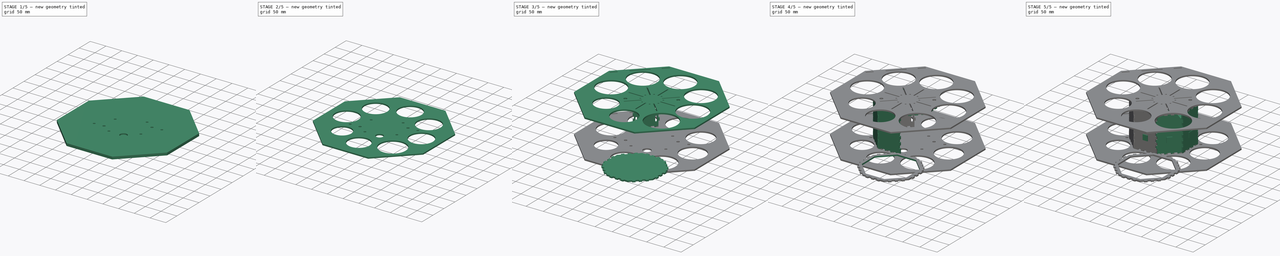
[diagram: build sequence overview — one tinted view per stage of 5, left to right]
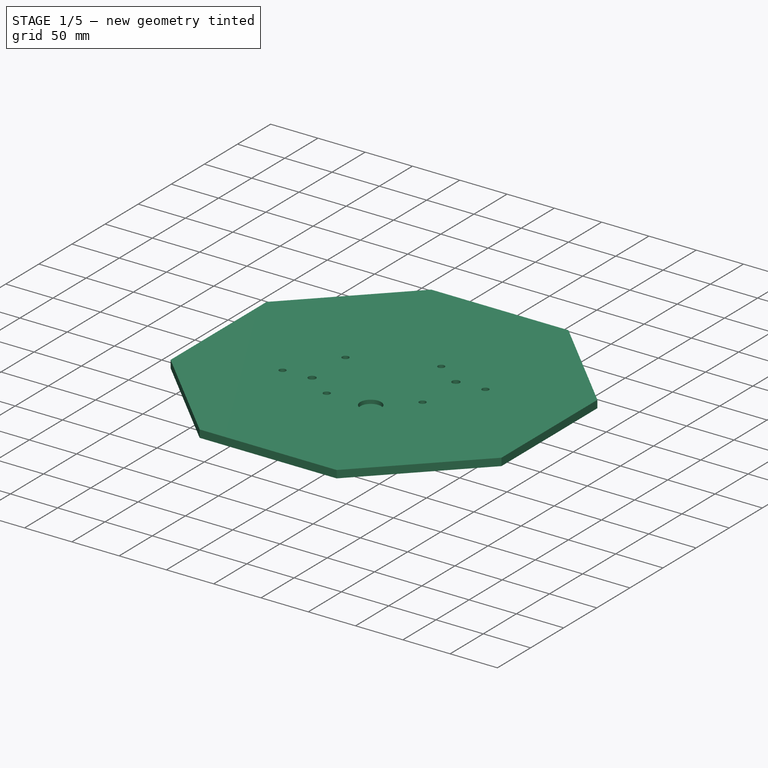
[diagram: stage 1 of 5 — iso view after this stage's code; geometry added in this stage tinted green]
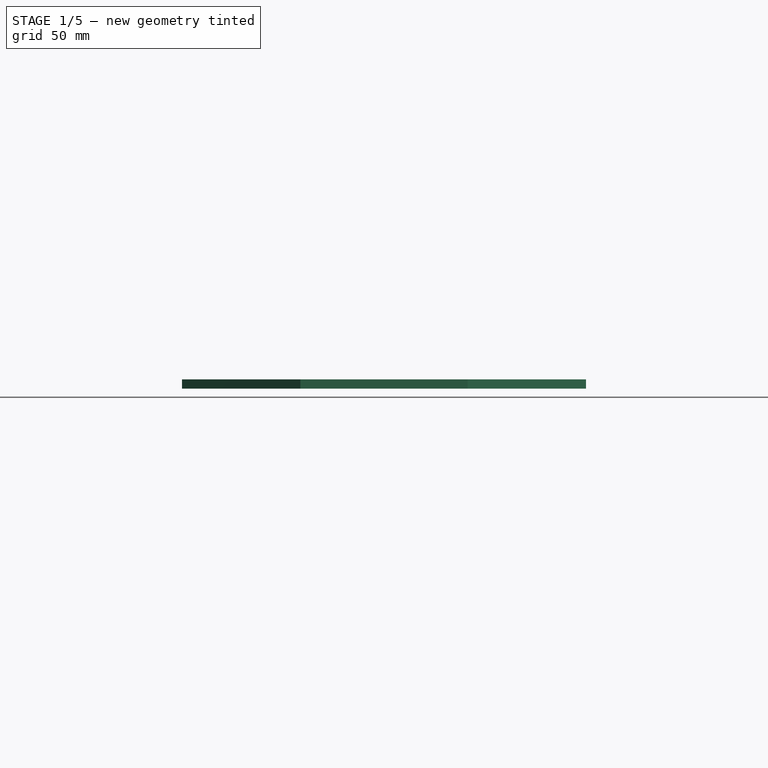
[diagram: stage 1 of 5 — front view after this stage's code; geometry added in this stage tinted green]
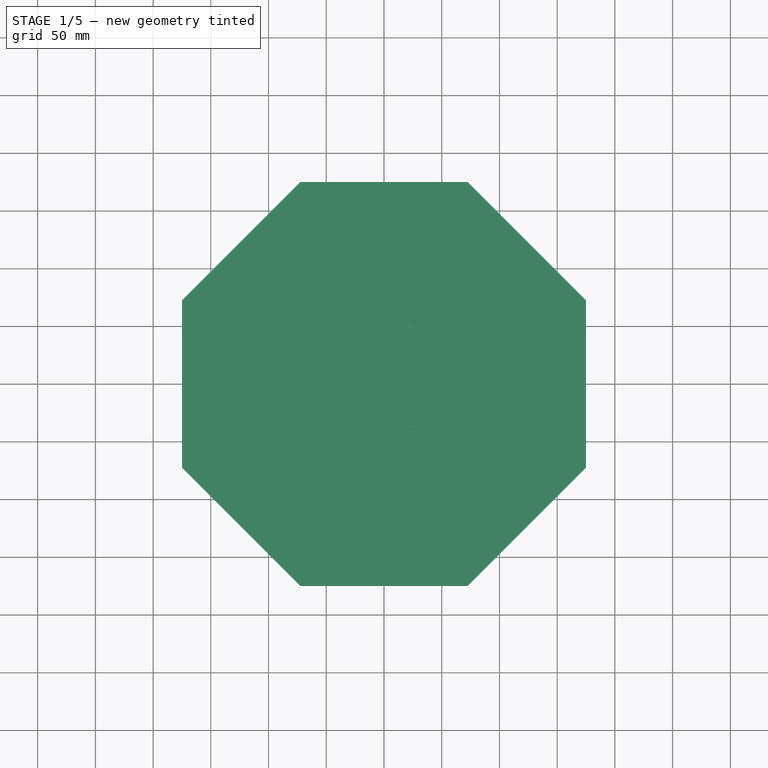
[diagram: stage 1 of 5 — top view after this stage's code; geometry added in this stage tinted green]
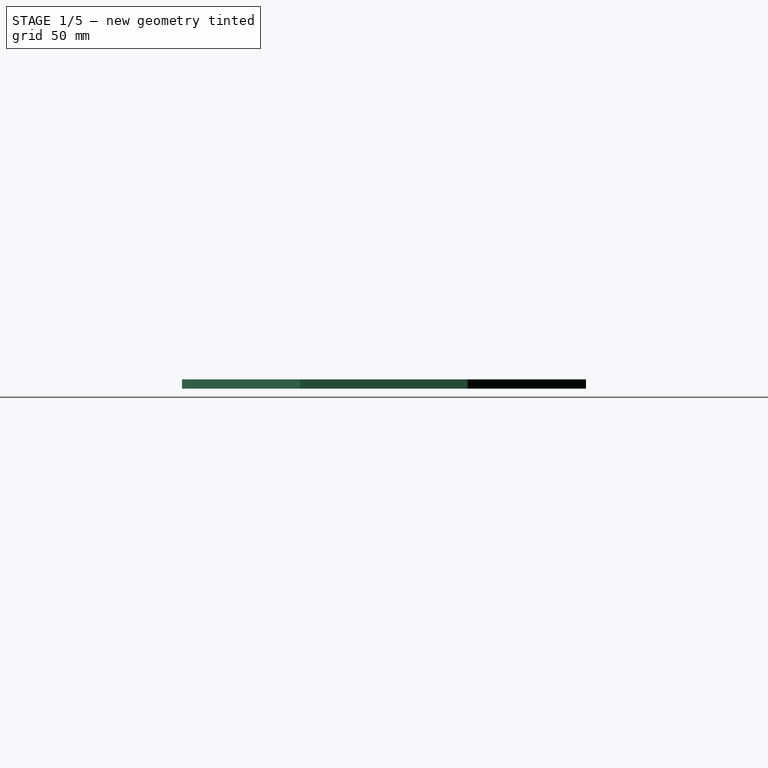
[diagram: stage 1 of 5 — right view after this stage's code; geometry added in this stage tinted green]
FCSTD DOCUMENT  (FreeCAD 0.20R29603 (Git))
Label: Bottles_V3
License: All rights reserved
LicenseURL: http://en.wikipedia.org/wiki/All_rights_reserved
objects: Sketcher::SketchObject×13, Part::Feature×11, Part::Extrusion×10, PartDesign::Body×9, PartDesign::Pocket×8, PartDesign::Pad×5, App::DocumentObjectGroup×5, Part::FeaturePython×5, PartDesign::FeatureBase×4, PartDesign::PolarPattern×2, PartDesign::SubShapeBinder×1, PartDesign::ShapeBinder×1
note: 82 computed .brp shape members not serialized (recipe doc carries the construction recipe); baked Part::Feature solids carry a one-line shape summary decoded from their .brp

FEATURE [PartDesign::Body] Body001  label="Relais board"
  Group = -> [Sketch001,Pad001]
  Origin = -> Origin001
  Placement = pos=(3,0,-20.5) rot=(0,0,-1;1.5708rad)
  Tip = -> Pad001
FEATURE [Sketcher::SketchObject] Sketch002
  FullyConstrained = true
  MapMode = 5
  Support = -> [XY_Plane002]
  sketch-geometry (9):
    g0: LineSegment StartX=174.922 StartY=72.4551 StartZ=0 EndX=72.4551 EndY=174.922 EndZ=0
    g1: LineSegment StartX=72.4551 StartY=174.922 StartZ=0 EndX=-72.4551 EndY=174.922 EndZ=0
    g2: LineSegment StartX=-72.4551 StartY=174.922 StartZ=0 EndX=-174.922 EndY=72.4551 EndZ=0
    g3: LineSegment StartX=-174.922 StartY=-72.4551 StartZ=0 EndX=-72.4551 EndY=-174.922 EndZ=0
    g4: LineSegment StartX=-72.4551 StartY=-174.922 StartZ=0 EndX=72.4551 EndY=-174.922 EndZ=0
    g5: LineSegment StartX=72.4551 StartY=-174.922 StartZ=0 EndX=174.922 EndY=-72.4551 EndZ=0
    g6: LineSegment StartX=174.922 StartY=-72.4551 StartZ=0 EndX=174.922 EndY=72.4551 EndZ=0
    g7: Circle CenterX=0 CenterY=0 CenterZ=0 NormalX=0 NormalY=0 NormalZ=1 AngleXU=0 Radius=189.334
    g8: LineSegment StartX=-174.922 StartY=72.4551 StartZ=0 EndX=-174.922 EndY=-72.4551 EndZ=0
  constraints (20):
    c: Coincident(g0,g1)
    c: Coincident(g1,g2)
    c: Coincident(g8,g3)
    c: Coincident(g3,g4)
    c: Coincident(g4,g5)
    c: Coincident(g5,g6)
    c: Coincident(g6,g0)
    c: Equal(g0, g1-g6) x6
    c: PointOnObject(g0,g7)
    c: PointOnObject(g1,g7)
    c: PointOnObject(g2,g7)
    c: PointOnObject(g8,g7)
    c: PointOnObject(g3,g7)
    c: PointOnObject(g4,g7)
    c: PointOnObject(g5,g7)
    c: PointOnObject(g6,g7)
    c: Coincident(g7,g-1)
    c: Horizontal(g1)
    c: Block(g6)
    c: Coincident(g2,g8)
FEATURE [PartDesign::Pad] Pad002
  Direction = (0,0,1)
  Length = 4
  Length2 = 10
  Profile = -> Sketch002
  ReferenceAxis = -> Sketch002 [N_Axis]
  Type = 0
FEATURE [Sketcher::SketchObject] Sketch003
  FullyConstrained = false
  MapMode = 5
  Support = -> [XY_Plane003]
  sketch-geometry (8):
    g0: Circle CenterX=-118.01 CenterY=0 CenterZ=0 NormalX=0 NormalY=0 NormalZ=1 AngleXU=0 Radius=36.5
    g1: Circle CenterX=-84.3757 CenterY=83.0682 CenterZ=0 NormalX=0 NormalY=0 NormalZ=1 AngleXU=0 Radius=36
    g2: Circle CenterX=0 CenterY=118.321 CenterZ=0 NormalX=0 NormalY=0 NormalZ=1 AngleXU=0 Radius=36
    g3: Circle CenterX=85.0257 CenterY=82.1935 CenterZ=0 NormalX=0 NormalY=0 NormalZ=1 AngleXU=0 Radius=36.5
    g4: Circle CenterX=118.875 CenterY=0 CenterZ=0 NormalX=0 NormalY=0 NormalZ=1 AngleXU=0 Radius=36
    g5: Circle CenterX=88.015 CenterY=-86.0905 CenterZ=0 NormalX=0 NormalY=0 NormalZ=1 AngleXU=0 Radius=40.5
    g6: Circle CenterX=0 CenterY=-113.908 CenterZ=0 NormalX=0 NormalY=0 NormalZ=1 AngleXU=0 Radius=33.5
    g7: Circle CenterX=-76.7156 CenterY=-80.0055 CenterZ=0 NormalX=0 NormalY=0 NormalZ=1 AngleXU=0 Radius=29
  constraints (11):
    c: Diameter(g0) = 73
    c: PointOnObject(g2,g-2)
    c: PointOnObject(g4,g-1)
    c: PointOnObject(g6,g-2)
    c: Diameter(g1) = 72
    c: Diameter(g2) = 72
    c: Diameter(g3) = 73
    c: Diameter(g4) = 72
    c: Diameter(g5) = 81
    c: Diameter(g6) = 67
    c: Diameter(g7) = 58
FEATURE [Sketcher::SketchObject] Sketch004
  FullyConstrained = false
  MapMode = 5
  Support = -> [XY_Plane004]
  sketch-geometry (9):
    g0: LineSegment StartX=174.922 StartY=72.4551 StartZ=0 EndX=72.4551 EndY=174.922 EndZ=0
    g1: LineSegment StartX=72.4551 StartY=174.922 StartZ=0 EndX=-72.4551 EndY=174.922 EndZ=0
    g2: LineSegment StartX=-72.4551 StartY=174.922 StartZ=0 EndX=-174.922 EndY=72.4551 EndZ=0
    g3: LineSegment StartX=-174.922 StartY=72.4551 StartZ=0 EndX=-174.922 EndY=-72.4551 EndZ=0
    g4: LineSegment StartX=-174.922 StartY=-72.4551 StartZ=0 EndX=-72.4551 EndY=-174.922 EndZ=0
    g5: LineSegment StartX=-72.4551 StartY=-174.922 StartZ=0 EndX=72.4551 EndY=-174.922 EndZ=0
    g6: LineSegment StartX=72.4551 StartY=-174.922 StartZ=0 EndX=174.922 EndY=-72.4551 EndZ=0
    g7: LineSegment StartX=174.922 StartY=-72.4551 StartZ=0 EndX=174.922 EndY=72.4551 EndZ=0
    g8: Circle CenterX=0 CenterY=0 CenterZ=0 NormalX=0 NormalY=0 NormalZ=1 AngleXU=0 Radius=189.334
  constraints (19):
    c: Coincident(g0,g1)
    c: Coincident(g1,g2)
    c: Coincident(g2,g3)
    c: Coincident(g3,g4)
    c: Coincident(g4,g5)
    c: Coincident(g5,g6)
    c: Coincident(g6,g7)
    c: Coincident(g7,g0)
    c: Equal(g0, g1-g7) x7
    c: PointOnObject(g0,g8)
    c: PointOnObject(g1,g8)
    c: PointOnObject(g2,g8)
    c: PointOnObject(g3,g8)
    c: PointOnObject(g4,g8)
    c: PointOnObject(g5,g8)
    c: PointOnObject(g6,g8)
    c: PointOnObject(g7,g8)
    c: Coincident(g8,g-1)
    c: Horizontal(g1)
FEATURE [PartDesign::Pad] Pad003
  Direction = (0,0,1)
  Length = 4
  Length2 = 10
  Profile = -> Sketch004
  ReferenceAxis = -> Sketch004 [N_Axis]
  Type = 0
FEATURE [PartDesign::Body] Body004  label="Floor001ref"
  Group = -> [Sketch004,Pad003]
  Origin = -> Origin004
  Placement = pos=(0,0,-38.5) rot=(0,0,1;0rad)
  Tip = -> Pad003
FEATURE [PartDesign::FeatureBase] Clone001
  BaseFeature = -> Body004
  Placement = pos=(0,0,-4) rot=(0,0,1;0rad)
FEATURE [Sketcher::SketchObject] Sketch005
  FullyConstrained = false
  MapMode = 5
  Support = -> [XY_Plane005]
  sketch-geometry (8):
    g0: Circle CenterX=-118.01 CenterY=0 CenterZ=0 NormalX=0 NormalY=0 NormalZ=1 AngleXU=0 Radius=40.5
    g1: Circle CenterX=-84.3757 CenterY=83.0682 CenterZ=0 NormalX=0 NormalY=0 NormalZ=1 AngleXU=0 Radius=40.5
    g2: Circle CenterX=0 CenterY=118.321 CenterZ=0 NormalX=0 NormalY=0 NormalZ=1 AngleXU=0 Radius=40.5
    g3: Circle CenterX=85.0257 CenterY=82.1935 CenterZ=0 NormalX=0 NormalY=0 NormalZ=1 AngleXU=0 Radius=40.5
    g4: Circle CenterX=118.875 CenterY=0 CenterZ=0 NormalX=0 NormalY=0 NormalZ=1 AngleXU=0 Radius=41.5
    g5: Circle CenterX=88.015 CenterY=-86.0905 CenterZ=0 NormalX=0 NormalY=0 NormalZ=1 AngleXU=0 Radius=44.5
    g6: Circle CenterX=0 CenterY=-113.908 CenterZ=0 NormalX=0 NormalY=0 NormalZ=1 AngleXU=0 Radius=36
    g7: Circle CenterX=-76.7156 CenterY=-80.0055 CenterZ=0 NormalX=0 NormalY=0 NormalZ=1 AngleXU=0 Radius=32.5
  constraints (11):
    c: Diameter(g0) = 81
    c: PointOnObject(g2,g-2)
    c: PointOnObject(g4,g-1)
    c: PointOnObject(g6,g-2)
    c: Diameter(g1) = 81
    c: Diameter(g2) = 81
    c: Diameter(g3) = 81
    c: Diameter(g4) = 83
    c: Diameter(g5) = 89
    c: Diameter(g6) = 72
    c: Diameter(g7) = 65
FEATURE [PartDesign::Pocket] Pocket001
  BaseFeature = -> Clone001
  Direction = (0,0,-1)
  Length = 5
  Length2 = 5
  Placement = pos=(0,0,-4) rot=(0,0,1;0rad)
  Profile = -> Sketch005
  ReferenceAxis = -> Sketch005 [N_Axis]
  Type = 1
FEATURE [Sketcher::SketchObject] Sketch006
  FullyConstrained = true
  MapMode = 5
  Support = -> [Pocket001]
  sketch-geometry (5):
    g0: ArcOfCircle CenterX=0 CenterY=66 CenterZ=0 NormalX=0 NormalY=0 NormalZ=1 AngleXU=0 Radius=1.6 StartAngle=-6.57829e-11 EndAngle=3.14159
    g1: ArcOfCircle CenterX=0 CenterY=26 CenterZ=0 NormalX=0 NormalY=0 NormalZ=1 AngleXU=0 Radius=1.6 StartAngle=3.14159 EndAngle=6.28319
    g2: LineSegment StartX=-1.6 StartY=66 StartZ=0 EndX=-1.6 EndY=26 EndZ=0
    g3: LineSegment StartX=1.6 StartY=26 StartZ=0 EndX=1.6 EndY=66 EndZ=0
    g4: Circle CenterX=10 CenterY=26 CenterZ=0 NormalX=0 NormalY=0 NormalZ=1 AngleXU=0 Radius=2
  constraints (13):
    c: Tangent(g0,g2) = -1.5708
    c: Tangent(g2,g1) = -1.5708
    c: Tangent(g1,g3) = -1.5708
    c: Tangent(g3,g0) = -1.5708
    c: Equal(g0,g1)
    c: PointOnObject(g0,g-2)
    c: PointOnObject(g1,g-2)
    c: DistanceX(g0,g0) = 3.2
    c: DistanceY(g-1,g1) = 26
    c: DistanceY(g1,g0) = 40
    c: Horizontal(g4,g1)
    c: Diameter(g4) = 4
    c: DistanceX(g1,g4) = 10
FEATURE [PartDesign::Pocket] Pocket002
  BaseFeature = -> Pocket001
  Direction = (0,0,-1)
  Length = 5
  Length2 = 5
  Placement = pos=(0,0,-4) rot=(0,0,1;0rad)
  Profile = -> Sketch006
  ReferenceAxis = -> Sketch006 [N_Axis]
  Type = 1
FEATURE [PartDesign::PolarPattern] PolarPattern001
  Angle = 360
  Axis = -> Sketch006 [N_Axis]
  BaseFeature = -> Pocket002
  Occurrences = 8
  Originals = -> [Pocket002]
  Placement = pos=(0,0,-4) rot=(0,0,1;0rad)
FEATURE [PartDesign::Body] Body006  label="Bottom"
  BaseFeature = -> Extrude
  Group = -> [BaseFeature,Sketch008,Pocket004]
  Origin = -> Origin006
  Placement = pos=(-88,196,-26.5) rot=(0,0,1;0rad)
  Tip = -> Pocket004
FEATURE [App::DocumentObjectGroup] Group002  label="ActualBoxParts"
  Group = -> [Extrude001,Extrude002,Extrude003,Extrude004,Extrude005,Extrude006,Extrude007,Extrude008,Extrude009,Body006]
FEATURE [App::DocumentObjectGroup] Group001  label="Box"
  Group = -> [Path001,Path004,Path005,Path006,Path007,Path008,Path009,Path010,Path011,Connect,Extrude,Group002]
FEATURE [Sketcher::SketchObject] Sketch010
  AttachmentOffset = pos=(0,0,0) rot=(0,0,1;0.392699rad)
  FullyConstrained = false
  MapMode = 5
  Placement = pos=(0,0,4) rot=(0,0,1;0.392699rad)
  Support = -> [Pad002]
  sketch-geometry (16):
    g0: Circle CenterX=0 CenterY=-53 CenterZ=0 NormalX=0 NormalY=0 NormalZ=1 AngleXU=0 Radius=11
    g1: Circle CenterX=-42.5 CenterY=37.5 CenterZ=0 NormalX=0 NormalY=0 NormalZ=1 AngleXU=0 Radius=3.5
    g2: Circle CenterX=-42.5 CenterY=-37.5 CenterZ=0 NormalX=0 NormalY=0 NormalZ=1 AngleXU=0 Radius=3.5
    g3: Circle CenterX=42.5 CenterY=37.5 CenterZ=0 NormalX=0 NormalY=0 NormalZ=1 AngleXU=0 Radius=3.5
    g4: Circle CenterX=42.5 CenterY=-37.5 CenterZ=0 NormalX=0 NormalY=0 NormalZ=1 AngleXU=0 Radius=3.5
    g5: Circle CenterX=90 CenterY=0 CenterZ=0 NormalX=0 NormalY=0 NormalZ=1 AngleXU=0 Radius=3.5
    g6: Circle CenterX=-90 CenterY=0 CenterZ=0 NormalX=0 NormalY=0 NormalZ=1 AngleXU=0 Radius=3.5
    g7: LineSegment StartX=-90 StartY=0 StartZ=0 EndX=-42.5 EndY=37.5 EndZ=0
    g8: LineSegment StartX=42.5 StartY=37.5 StartZ=0 EndX=90 EndY=0 EndZ=0
    g9: LineSegment StartX=-42.5 StartY=37.5 StartZ=0 EndX=0 EndY=0 EndZ=0
    g10: LineSegment StartX=0 StartY=0 StartZ=0 EndX=-42.5 EndY=-37.5 EndZ=0
    g11: LineSegment StartX=42.5 StartY=37.5 StartZ=0 EndX=0 EndY=0 EndZ=0
    g12: Circle CenterX=-61.7663 CenterY=-9.30983 CenterZ=0 NormalX=0 NormalY=0 NormalZ=1 AngleXU=0 Radius=4
    g13: Circle CenterX=61.7663 CenterY=9.30983 CenterZ=0 NormalX=0 NormalY=0 NormalZ=1 AngleXU=0 Radius=4
    g14: LineSegment StartX=-61.7663 StartY=-9.30983 StartZ=0 EndX=0 EndY=0 EndZ=0
    g15: LineSegment StartX=0 StartY=0 StartZ=0 EndX=61.7663 EndY=9.30983 EndZ=0
  constraints (39):
    c: PointOnObject(g0,g-2)
    c: Diameter(g0) = 22
    c: DistanceY(g0,g-1) = 53
    c: Diameter(g1) = 7
    c: Equal(g2,g1)
    c: PointOnObject(g5,g-1)
    c: PointOnObject(g6,g-1)
    c: Equal(g6,g2)
    c: Equal(g2,g4)
    c: Equal(g4,g5)
    c: Equal(g5,g3)
    c: Vertical(g3,g4)
    c: Vertical(g2,g1)
    c: Horizontal(g4,g2)
    c: Horizontal(g1,g3)
    c: DistanceX(g1,g3) = 85
    c: DistanceY(g2,g1) = 75
    c: DistanceX(g6,g5) = 180
    c: Coincident(g7,g6)
    c: Coincident(g7,g1)
    c: Coincident(g8,g3)
    c: Coincident(g8,g5)
    c: Equal(g7,g8)
    c: Coincident(g9,g1)
    c: Coincident(g9,g-1)
    c: Coincident(g10,g9)
    c: Coincident(g10,g2)
    c: Equal(g9,g10)
    c: Coincident(g11,g3)
    c: Coincident(g11,g9)
    c: Equal(g11,g9)
    c: Coincident(g14,g12)
    c: Coincident(g14,g9)
    c: Coincident(g15,g9)
    c: Coincident(g15,g13)
    c: Equal(g15,g14)
    c: Diameter(g12) = 8
    c: Diameter(g13) = 8
    c: Parallel(g14,g15)
FEATURE [PartDesign::Pocket] Pocket006
  BaseFeature = -> Pad002
  Direction = (0,0,-1)
  Length = 5
  Length2 = 5
  Profile = -> Sketch010
  ReferenceAxis = -> Sketch010 [N_Axis]
  Type = 0
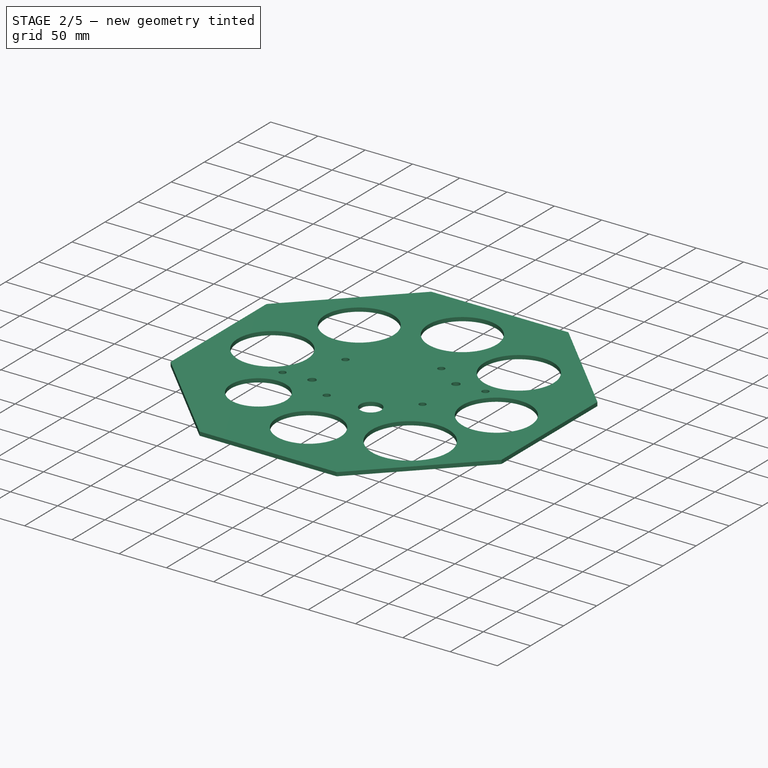
[diagram: stage 2 of 5 — iso view after this stage's code; geometry added in this stage tinted green]
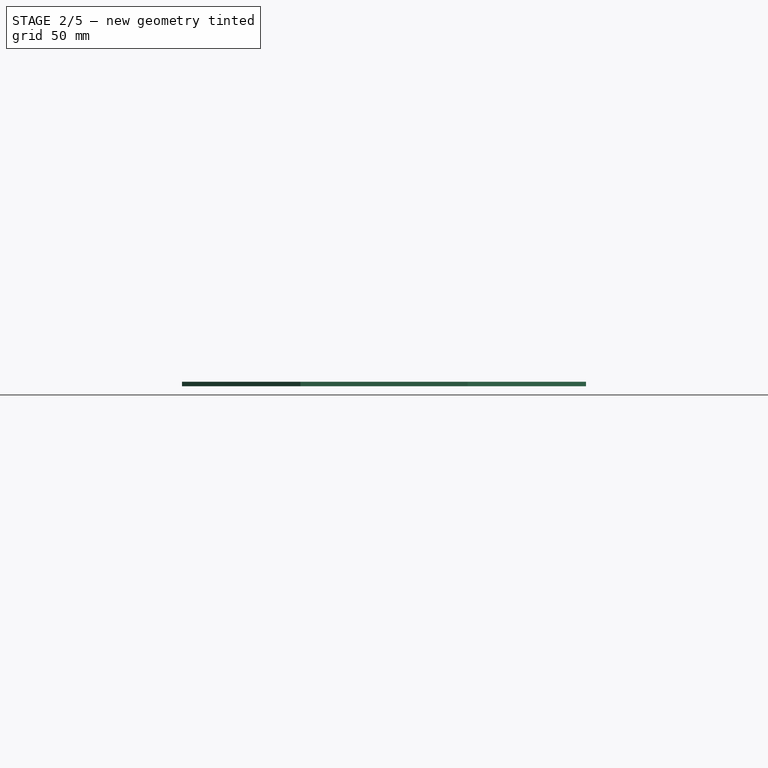
[diagram: stage 2 of 5 — front view after this stage's code; geometry added in this stage tinted green]
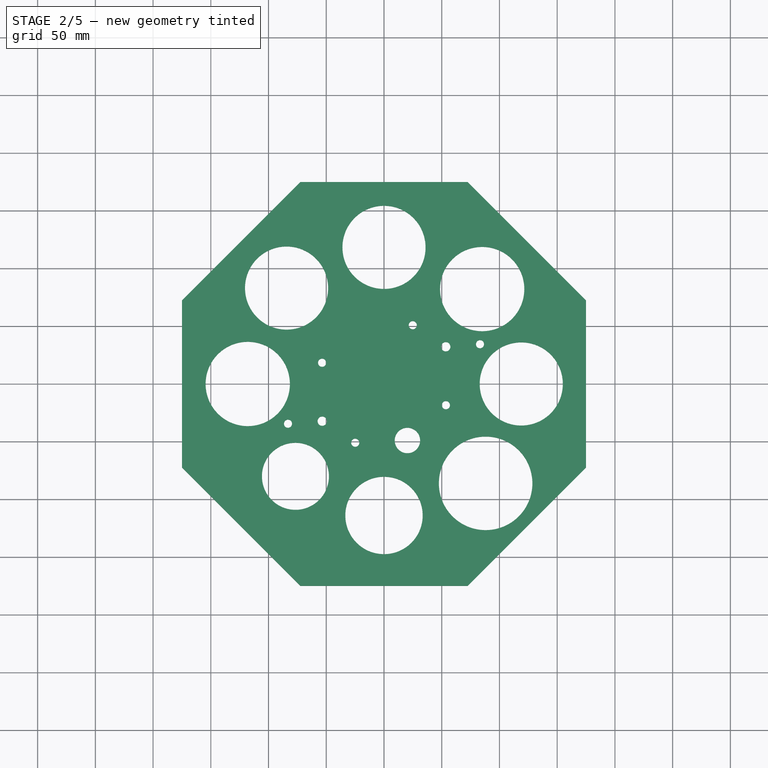
[diagram: stage 2 of 5 — top view after this stage's code; geometry added in this stage tinted green]
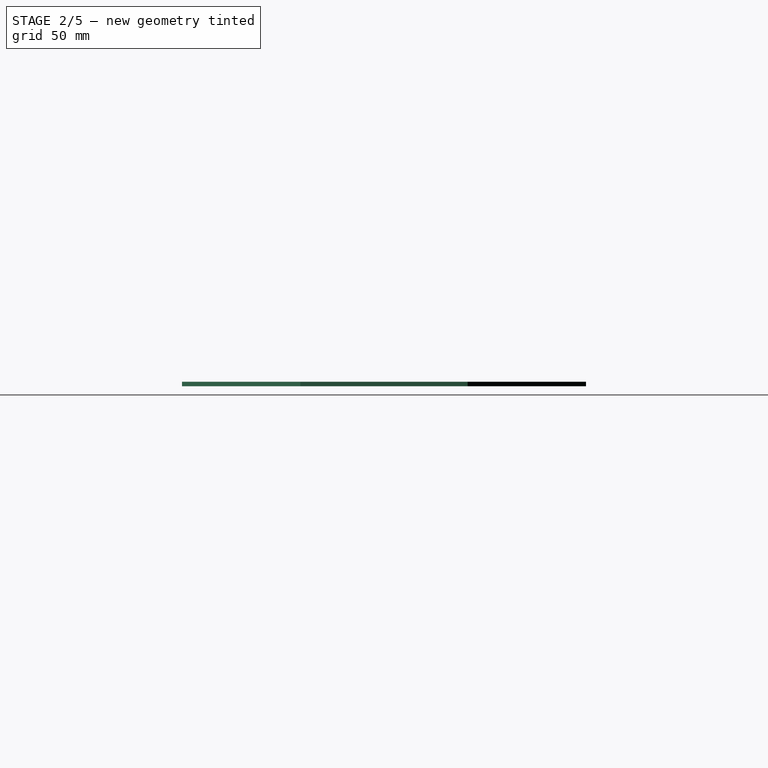
[diagram: stage 2 of 5 — right view after this stage's code; geometry added in this stage tinted green]
FEATURE [Sketcher::SketchObject] Sketch007
  FullyConstrained = false
  MapMode = 5
  Support = -> [PolarPattern001]
  sketch-geometry (3):
    g0: Circle CenterX=53.8009 CenterY=32.779 CenterZ=0 NormalX=0 NormalY=0 NormalZ=1 AngleXU=0 Radius=4.5
    g1: Circle CenterX=-53.8009 CenterY=-32.779 CenterZ=0 NormalX=0 NormalY=0 NormalZ=1 AngleXU=0 Radius=4.5
    g2: LineSegment StartX=53.8009 StartY=32.779 StartZ=0 EndX=-53.8009 EndY=-32.779 EndZ=0
  constraints (7):
    c: Diameter(g0) = 9
    c: Diameter(g1) = 9
    c: Coincident(g2,g0)
    c: Coincident(g2,g1)
    c: PointOnObject(g-1,g2)
    c: Distance(g0,g-1) = 63
    c: Distance(g1,g-1) = 63
FEATURE [PartDesign::Pocket] Pocket003  label="Rope holes"
  BaseFeature = -> PolarPattern001
  Direction = (0,0,-1)
  Length = 5
  Length2 = 5
  Placement = pos=(0,0,-4) rot=(0,0,1;0rad)
  Profile = -> Sketch007
  ReferenceAxis = -> Sketch007 [N_Axis]
  Type = 0
FEATURE [PartDesign::Body] Body002  label="Floor"
  Group = -> [Sketch002,Pad002,Sketch010,Pocket006]
  Origin = -> Origin002
  Placement = pos=(0,0,-38.5) rot=(0,0,1;0rad)
  Tip = -> Pocket006
FEATURE [PartDesign::FeatureBase] Clone
  BaseFeature = -> Body002
  Placement = pos=(0,0,-4) rot=(0,0,1;0rad)
FEATURE [PartDesign::Pocket] Pocket
  BaseFeature = -> Clone
  Direction = (0,0,-1)
  Length = 5
  Length2 = 5
  Placement = pos=(0,0,-4) rot=(0,0,1;0rad)
  Profile = -> Sketch003
  ReferenceAxis = -> Sketch003 [N_Axis]
  Type = 1
FEATURE [PartDesign::Body] Body003  label="FloorBottleTemplate"
  BaseFeature = -> Body002
  Group = -> [Clone,Sketch003,Pocket]
  Origin = -> Origin003
  Placement = pos=(0,0,-30.5) rot=(0,0,1;0rad)
  Tip = -> Pocket
FEATURE [PartDesign::SubShapeBinder] Binder
  BindCopyOnChange = 0
  BindMode = 0
  ClaimChildren = false
  Context = -> Body007 [Binder.]
  Fuse = false
  MakeFace = true
  OffsetFill = false
  OffsetIntersection = false
  OffsetJoinType = 0
  OffsetOpenResult = false
  PartialLoad = false
  Relative = true
  Support = -> [Body005[Pocket003.Edge67],Body002[Pocket006.Edge26]]
  _Version = 2
FEATURE [PartDesign::ShapeBinder] CopyPocket003
  Placement = pos=(0,0,-4) rot=(0,0,1;0rad)
  TraceSupport = false
FEATURE [Sketcher::SketchObject] Sketch011
  ExternalGeometry = -> [Binder]
  FullyConstrained = false
  MapMode = 5
  Placement = pos=(-123.689,123.689,-4) rot=(-0.281085,0.678598,0.678598;3.68962rad)
  sketch-geometry (20):
    g0: LineSegment StartX=-71.748 StartY=83 StartZ=0 EndX=-52.4324 EndY=83 EndZ=0
    g1: LineSegment StartX=73.1622 StartY=83 StartZ=0 EndX=73.1622 EndY=-30.5 EndZ=0
    g2: LineSegment StartX=73.1622 StartY=-30.5 StartZ=0 EndX=54.4502 EndY=-30.5 EndZ=0
    g3: LineSegment StartX=-71.748 StartY=-30.5 StartZ=0 EndX=-71.748 EndY=83 EndZ=0
    g4: LineSegment StartX=-25.4679 StartY=83 StartZ=0 EndX=-25.4679 EndY=79 EndZ=0
    g5: LineSegment StartX=-25.4679 StartY=79 StartZ=0 EndX=-52.4324 EndY=79 EndZ=0
    g6: LineSegment StartX=-52.4324 StartY=79 StartZ=0 EndX=-52.4324 EndY=83 EndZ=0
    g7: LineSegment StartX=54.4502 StartY=83 StartZ=0 EndX=54.4502 EndY=79 EndZ=0
    g8: LineSegment StartX=54.4502 StartY=79 StartZ=0 EndX=25.1798 EndY=79 EndZ=0
    g9: LineSegment StartX=25.1798 StartY=79 StartZ=0 EndX=25.1798 EndY=83 EndZ=0
    g10: LineSegment StartX=-25.4679 StartY=-30.5 StartZ=0 EndX=-25.4679 EndY=-26.5 EndZ=0
    g11: LineSegment StartX=-25.4679 StartY=-26.5 StartZ=0 EndX=-52.4324 EndY=-26.5 EndZ=0
    g12: LineSegment StartX=-52.4324 StartY=-26.5 StartZ=0 EndX=-52.4324 EndY=-30.5 EndZ=0
    g13: LineSegment StartX=25.1798 StartY=-30.5 StartZ=0 EndX=25.1798 EndY=-26.5 EndZ=0
    g14: LineSegment StartX=25.1798 StartY=-26.5 StartZ=0 EndX=54.4502 EndY=-26.5 EndZ=0
    g15: LineSegment StartX=54.4502 StartY=-26.5 StartZ=0 EndX=54.4502 EndY=-30.5 EndZ=0
    g16: LineSegment StartX=-25.4679 StartY=83 StartZ=0 EndX=25.1798 EndY=83 EndZ=0
    g17: LineSegment StartX=54.4502 StartY=83 StartZ=0 EndX=73.1622 EndY=83 EndZ=0
    g18: LineSegment StartX=25.1798 StartY=-30.5 StartZ=0 EndX=-25.4679 EndY=-30.5 EndZ=0
    g19: LineSegment StartX=-52.4324 StartY=-30.5 StartZ=0 EndX=-71.748 EndY=-30.5 EndZ=0
  constraints (44):
    c: Coincident(g17,g1)
    c: Coincident(g1,g2)
    c: Coincident(g19,g3)
    c: Coincident(g3,g0)
    c: Horizontal(g0)
    c: Horizontal(g2)
    c: Vertical(g1)
    c: Vertical(g3)
    c: Coincident(g0,g-3)
    c: Coincident(g1,g-4)
    c: Coincident(g4,g5)
    c: Coincident(g5,g6)
    c: Horizontal(g5)
    c: Vertical(g4)
    c: Vertical(g6)
    c: Coincident(g7,g8)
    c: Coincident(g8,g9)
    c: Horizontal(g8)
    c: Vertical(g7)
    c: Vertical(g9)
    c: PointOnObject(g9,g0)
    c: Coincident(g10,g11)
    c: Coincident(g11,g12)
    c: Horizontal(g11)
    c: Vertical(g10)
    c: Vertical(g12)
    c: PointOnObject(g12,g2)
    c: Coincident(g13,g14)
    c: Coincident(g14,g15)
    c: Horizontal(g14)
    c: Vertical(g13)
    c: Vertical(g15)
    c: Vertical(g13,g8)
    c: Vertical(g7,g14)
    c: Vertical(g10,g4)
    c: Vertical(g11,g5)
    c: Horizontal(g10,g13)
    c: Horizontal(g4,g8)
    c: DistanceY(g5,g6) = 4
    c: DistanceY(g13,g13) = 4
    c: PointOnObject(g16,g9)
    c: PointOnObject(g17,g7)
    c: PointOnObject(g18,g10)
    c: PointOnObject(g19,g12)
FEATURE [PartDesign::Pad] Pad004
  Direction = (-0.707107,0.707107,0)
  Length = 4
  Length2 = 10
  Placement = pos=(-123.689,123.689,-4) rot=(-0.281085,0.678598,0.678598;3.68962rad)
  Profile = -> Sketch011
  ReferenceAxis = -> Sketch011 [N_Axis]
  Reversed = true
  Type = 0
FEATURE [Sketcher::SketchObject] Sketch012
  FullyConstrained = false
  MapMode = 5
  Placement = pos=(-123.689,123.689,-4) rot=(-0.281085,0.678598,0.678598;3.68962rad)
  Support = -> [Pad004]
  sketch-geometry (10):
    g0: ArcOfCircle CenterX=-55.0816 CenterY=55.5968 CenterZ=0 NormalX=0 NormalY=0 NormalZ=1 AngleXU=0 Radius=2 StartAngle=-3.38e-14 EndAngle=3.14159
    g1: ArcOfCircle CenterX=-55.0816 CenterY=-10.4032 CenterZ=0 NormalX=0 NormalY=0 NormalZ=1 AngleXU=0 Radius=2 StartAngle=3.14159 EndAngle=6.28319
    g2: LineSegment StartX=-57.0816 StartY=55.5968 StartZ=0 EndX=-57.0816 EndY=-10.4032 EndZ=0
    g3: LineSegment StartX=-53.0816 StartY=-10.4032 StartZ=0 EndX=-53.0816 EndY=55.5968 EndZ=0
    g4: Circle CenterX=51.1076 CenterY=51.774 CenterZ=0 NormalX=0 NormalY=0 NormalZ=1 AngleXU=0 Radius=8.15
    g5: Circle CenterX=51.1076 CenterY=-4.81737 CenterZ=0 NormalX=0 NormalY=0 NormalZ=1 AngleXU=0 Radius=8.15
    g6: Circle CenterX=-51.3816 CenterY=67.353 CenterZ=0 NormalX=0 NormalY=0 NormalZ=1 AngleXU=0 Radius=1.65
    g7: Circle CenterX=-66.9816 CenterY=67.353 CenterZ=0 NormalX=0 NormalY=0 NormalZ=1 AngleXU=0 Radius=1.65
    g8: Circle CenterX=-51.3816 CenterY=-17.417 CenterZ=0 NormalX=0 NormalY=0 NormalZ=1 AngleXU=0 Radius=1.65
    g9: Circle CenterX=-66.9816 CenterY=-17.417 CenterZ=0 NormalX=0 NormalY=0 NormalZ=1 AngleXU=0 Radius=1.65
  constraints (22):
    c: Tangent(g0,g2) = -1.5708
    c: Tangent(g2,g1) = -1.5708
    c: Tangent(g1,g3) = -1.5708
    c: Tangent(g3,g0) = -1.5708
    c: Equal(g0,g1)
    c: Vertical(g2)
    c: Diameter(g0) = 4
    c: DistanceY(g1,g0) = 66
    c: Diameter(g4) = 16.3
    c: Equal(g5,g4)
    c: Vertical(g5,g4)
    c: DistanceX(g0,g6) = 3.7
    c: DistanceX(g7,g6) = 15.6
    c: DistanceY(g8,g6) = 84.77
    c: DistanceX(g9,g8) = 15.6
    c: Horizontal(g9,g8)
    c: Vertical(g8,g6)
    c: Horizontal(g6,g7)
    c: Diameter(g6) = 3.3
    c: Equal(g6,g7)
    c: Equal(g7,g9)
    c: Equal(g9,g8)
FEATURE [PartDesign::Pocket] Pocket007
  BaseFeature = -> Pad004
  Direction = (0.707107,-0.707107,1e-16)
  Length = 5
  Length2 = 5
  Placement = pos=(-123.689,123.689,-4) rot=(-0.281085,0.678598,0.678598;3.68962rad)
  Profile = -> Sketch012
  ReferenceAxis = -> Sketch012 [N_Axis]
  Type = 0
FEATURE [App::DocumentObjectGroup] GrExplode_Slice  label="Exploded Slice"
  Group = -> [Slice_child0]
FEATURE [Part::FeaturePython] Slice001  # WARN: FeaturePython — macro-defined, semantics opaque (R4)
  Base = -> Body003
  Mode = 1
  Tolerance = 0
  Tools = -> [Body007]
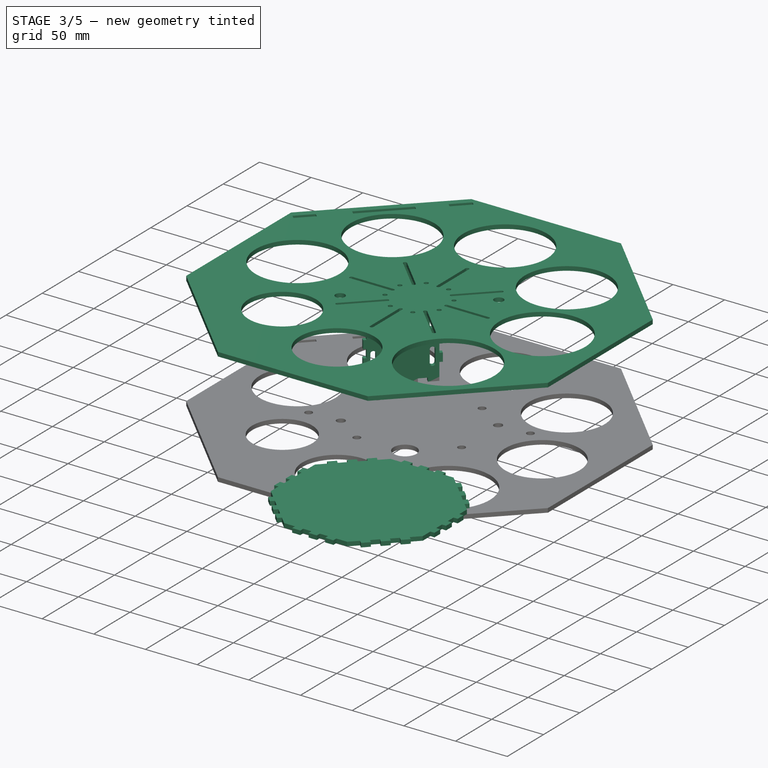
[diagram: stage 3 of 5 — iso view after this stage's code; geometry added in this stage tinted green]
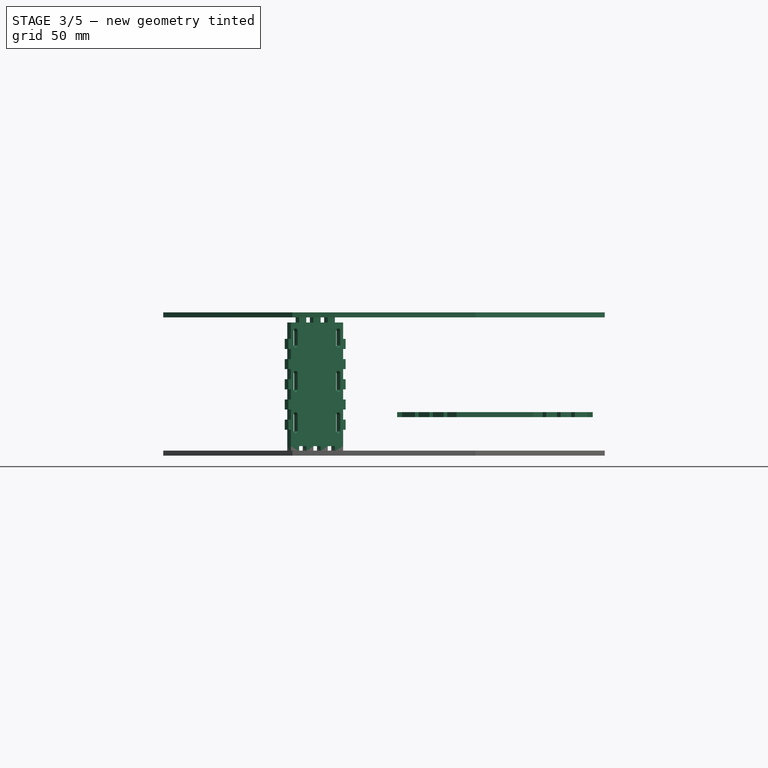
[diagram: stage 3 of 5 — front view after this stage's code; geometry added in this stage tinted green]
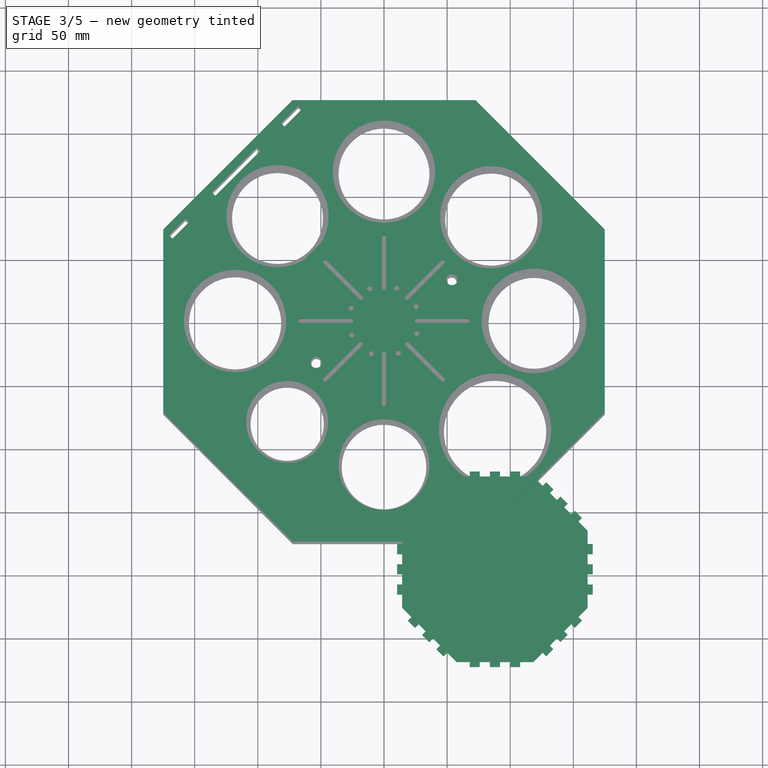
[diagram: stage 3 of 5 — top view after this stage's code; geometry added in this stage tinted green]
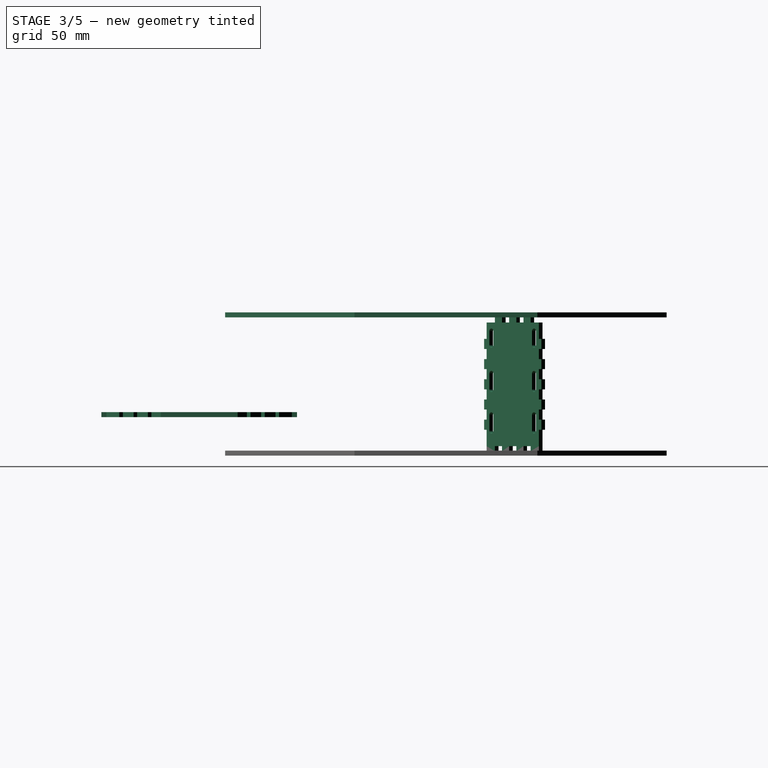
[diagram: stage 3 of 5 — right view after this stage's code; geometry added in this stage tinted green]
FEATURE [PartDesign::Body] Body005  label="TopBottleHolder"
  BaseFeature = -> Body004
  Group = -> [Clone001,Sketch005,Pocket001,Sketch006,Pocket002,PolarPattern001,Sketch007,Pocket003]
  Origin = -> Origin005
  Placement = pos=(0,0,79) rot=(0,0,1;0rad)
  Tip = -> Pocket003
FEATURE [App::DocumentObjectGroup] Group  label="TopBottleHolder001"
  Group = -> [Body004,Body005]
FEATURE [Part::Feature] Path001
  shape: bbox 155 x 155 x 2e-07 mm, 0 faces, 0 solids (baked)
FEATURE [Part::Feature] Path002
  shape: bbox 139 x 139 x 2e-07 mm, 0 faces, 0 solids (baked)
FEATURE [Part::Feature] Path003
  shape: bbox 155 x 155 x 2e-07 mm, 0 faces, 0 solids (baked)
FEATURE [Part::Feature] Path004 .. Path011  x8 (patterned run collapsed; names and placements below)
  shape: bbox 64.2 x 106 x 2e-07 mm, 0 faces, 0 solids (baked)
FEATURE [Part::FeaturePython] Connect  # WARN: FeaturePython — macro-defined, semantics opaque (R4)
  Objects = -> [Path002,Path003]
  Tolerance = 0
FEATURE [Part::Extrusion] Extrude
  Base = -> Path001
  Dir = (0,0,-1)
  DirMode = 0
  FaceMakerClass = Part::FaceMakerBullseye
  LengthFwd = 4
  LengthRev = 0
  Solid = true
  Symmetric = false
FEATURE [Part::Extrusion] Extrude008  label="Extrude008(isedited)"
  Base = -> Path011
  Dir = (0,0,-1)
  DirMode = 0
  FaceMakerClass = Part::FaceMakerBullseye
  LengthFwd = 4
  LengthRev = 0
  Placement = pos=(-410.829,-304.763,85) rot=(0.862856,0.357407,0.357407;1.71777rad)
  Solid = true
  Symmetric = false
FEATURE [PartDesign::Body] Body007  label="Controller_plate"
  Group = -> [Binder,CopyPocket003,Sketch011,Pad004,Sketch012,Pocket007]
  Origin = -> Origin007
  Placement = pos=(5,-4,0) rot=(0,0,1;0rad)
  Tip = -> Pocket007
FEATURE [PartDesign::FeatureBase] Clone002
  BaseFeature = -> Extrude008
  Placement = pos=(-410.829,-304.763,85) rot=(0.862856,0.357407,0.357407;1.71777rad)
FEATURE [Sketcher::SketchObject] Sketch013
  FullyConstrained = false
  MapMode = 5
  Placement = pos=(-413.657,-301.935,85) rot=(-0.862856,-0.357407,0.357407;1.71777rad)
  Support = -> [Clone002]
  sketch-geometry (24):
    g0: ArcOfCircle CenterX=481.967 CenterY=31.7091 CenterZ=0 NormalX=0 NormalY=0 NormalZ=1 AngleXU=0 Radius=2.25683 StartAngle=0 EndAngle=3.14159
    g1: ArcOfCircle CenterX=481.967 CenterY=20.9869 CenterZ=0 NormalX=0 NormalY=0 NormalZ=1 AngleXU=0 Radius=2.25683 StartAngle=3.14159 EndAngle=6.28319
    g2: LineSegment StartX=479.71 StartY=31.7091 StartZ=0 EndX=479.71 EndY=20.9869 EndZ=0
    g3: LineSegment StartX=484.224 StartY=20.9869 StartZ=0 EndX=484.224 EndY=31.7091 EndZ=0
    g4: ArcOfCircle CenterX=481.967 CenterY=66.8673 CenterZ=0 NormalX=0 NormalY=0 NormalZ=1 AngleXU=0 Radius=2.25683 StartAngle=1e-16 EndAngle=3.14159
    g5: ArcOfCircle CenterX=481.967 CenterY=54.5993 CenterZ=0 NormalX=0 NormalY=0 NormalZ=1 AngleXU=0 Radius=2.25683 StartAngle=3.14159 EndAngle=6.28319
    g6: LineSegment StartX=479.71 StartY=66.8673 StartZ=0 EndX=479.71 EndY=54.5993 EndZ=0
    g7: LineSegment StartX=484.224 StartY=54.5993 StartZ=0 EndX=484.224 EndY=66.8673 EndZ=0
    g8: ArcOfCircle CenterX=481.967 CenterY=99.719 CenterZ=0 NormalX=0 NormalY=0 NormalZ=1 AngleXU=0 Radius=2.25683 StartAngle=1.3e-15 EndAngle=3.14159
    g9: ArcOfCircle CenterX=481.967 CenterY=87.395 CenterZ=0 NormalX=0 NormalY=0 NormalZ=1 AngleXU=0 Radius=2.25683 StartAngle=3.14159 EndAngle=6.28319
    g10: LineSegment StartX=479.71 StartY=99.719 StartZ=0 EndX=479.71 EndY=87.395 EndZ=0
    g11: LineSegment StartX=484.224 StartY=87.395 StartZ=0 EndX=484.224 EndY=99.719 EndZ=0
    g12: ArcOfCircle CenterX=529.708 CenterY=99.719 CenterZ=0 NormalX=0 NormalY=0 NormalZ=1 AngleXU=0 Radius=2.25683 StartAngle=-1.8e-15 EndAngle=3.14159
    g13: ArcOfCircle CenterX=529.708 CenterY=87.395 CenterZ=0 NormalX=0 NormalY=0 NormalZ=1 AngleXU=0 Radius=2.25683 StartAngle=3.14159 EndAngle=6.28319
    g14: LineSegment StartX=527.452 StartY=99.719 StartZ=0 EndX=527.452 EndY=87.395 EndZ=0
    g15: LineSegment StartX=531.965 StartY=87.395 StartZ=0 EndX=531.965 EndY=99.719 EndZ=0
    g16: ArcOfCircle CenterX=529.708 CenterY=66.8673 CenterZ=0 NormalX=0 NormalY=0 NormalZ=1 AngleXU=0 Radius=2.25683 StartAngle=2e-16 EndAngle=3.14159
    g17: ArcOfCircle CenterX=529.708 CenterY=54.5993 CenterZ=0 NormalX=0 NormalY=0 NormalZ=1 AngleXU=0 Radius=2.25683 StartAngle=3.14159 EndAngle=6.28319
    g18: LineSegment StartX=527.452 StartY=66.8673 StartZ=0 EndX=527.452 EndY=54.5993 EndZ=0
    g19: LineSegment StartX=531.965 StartY=54.5993 StartZ=0 EndX=531.965 EndY=66.8673 EndZ=0
    g20: ArcOfCircle CenterX=529.708 CenterY=31.7091 CenterZ=0 NormalX=0 NormalY=0 NormalZ=1 AngleXU=0 Radius=2.25683 StartAngle=1e-16 EndAngle=3.14159
    g21: ArcOfCircle CenterX=529.708 CenterY=20.9869 CenterZ=0 NormalX=0 NormalY=0 NormalZ=1 AngleXU=0 Radius=2.25683 StartAngle=3.14159 EndAngle=6.28319
    g22: LineSegment StartX=527.452 StartY=31.7091 StartZ=0 EndX=527.452 EndY=20.9869 EndZ=0
    g23: LineSegment StartX=531.965 StartY=20.9869 StartZ=0 EndX=531.965 EndY=31.7091 EndZ=0
  constraints (51):
    c: Tangent(g0,g2) = -1.5708
    c: Tangent(g2,g1) = -1.5708
    c: Tangent(g1,g3) = -1.5708
    c: Tangent(g3,g0) = -1.5708
    c: Equal(g0,g1)
    c: Vertical(g2)
    c: Tangent(g4,g6) = -1.5708
    c: Tangent(g6,g5) = -1.5708
    c: Tangent(g5,g7) = -1.5708
    c: Tangent(g7,g4) = -1.5708
    c: Equal(g4,g5)
    c: Vertical(g6)
    c: Tangent(g8,g10) = -1.5708
    c: Tangent(g10,g9) = -1.5708
    c: Tangent(g9,g11) = -1.5708
    c: Tangent(g11,g8) = -1.5708
    c: Equal(g8,g9)
    c: Vertical(g10)
    c: Equal(g8,g4)
    c: Equal(g4,g0)
    c: Vertical(g4,g0)
    c: Vertical(g0,g8)
    c: Tangent(g12,g14) = -1.5708
    c: Tangent(g14,g13) = -1.5708
    c: Tangent(g13,g15) = -1.5708
    c: Tangent(g15,g12) = -1.5708
    c: Equal(g12,g13)
    c: Vertical(g14)
    c: Tangent(g16,g18) = -1.5708
    c: Tangent(g18,g17) = -1.5708
    c: Tangent(g17,g19) = -1.5708
    c: Tangent(g19,g16) = -1.5708
    c: Equal(g16,g17)
    c: Vertical(g18)
    c: Tangent(g20,g22) = -1.5708
    c: Tangent(g22,g21) = -1.5708
    c: Tangent(g21,g23) = -1.5708
    c: Tangent(g23,g20) = -1.5708
    c: Equal(g20,g21)
    c: Vertical(g22)
    c: Equal(g12,g16)
    c: Equal(g16,g20)
    c: Equal(g20,g8)
    c: Vertical(g16,g12)
    c: Vertical(g12,g20)
    c: Horizontal(g20,g0)
    c: Horizontal(g4,g16)
    c: Horizontal(g8,g12)
    c: Horizontal(g9,g13)
    c: Horizontal(g17,g5)
    c: Horizontal(g1,g21)
FEATURE [PartDesign::Pocket] Pocket008
  BaseFeature = -> Clone002
  Direction = (0.707107,-0.707107,0)
  Length = 5
  Length2 = 5
  Placement = pos=(-410.829,-304.763,85) rot=(0.862856,0.357407,0.357407;1.71777rad)
  Profile = -> Sketch013
  ReferenceAxis = -> Sketch013 [N_Axis]
  Type = 0
FEATURE [PartDesign::Body] Body009
  BaseFeature = -> Extrude008
  Group = -> [Clone002,Sketch013,Pocket008]
  Origin = -> Origin009
  Tip = -> Pocket008
FEATURE [Part::FeaturePython] Slice  # WARN: FeaturePython — macro-defined, semantics opaque (R4)
  Base = -> Body005
  Mode = 1
  Tolerance = 0
  Tools = -> [Body007]
FEATURE [Part::FeaturePython] Slice_child0  label="Slice.0"  # WARN: FeaturePython — macro-defined, semantics opaque (R4)
  Base = -> Slice
  FilterType = 1
  Invert = false
  OverrideMaxVal = 0
  WindowFrom = 80
  WindowTo = 100
  items = 0
FEATURE [Part::FeaturePython] Slice001_child0  label="Slice001.0"  # WARN: FeaturePython — macro-defined, semantics opaque (R4)
  Base = -> Slice001
  FilterType = 1
  Invert = false
  OverrideMaxVal = 0
  WindowFrom = 80
  WindowTo = 100
  items = 0
FEATURE [App::DocumentObjectGroup] GrExplode_Slice001  label="Exploded Slice001"
  Group = -> [Slice001_child0]
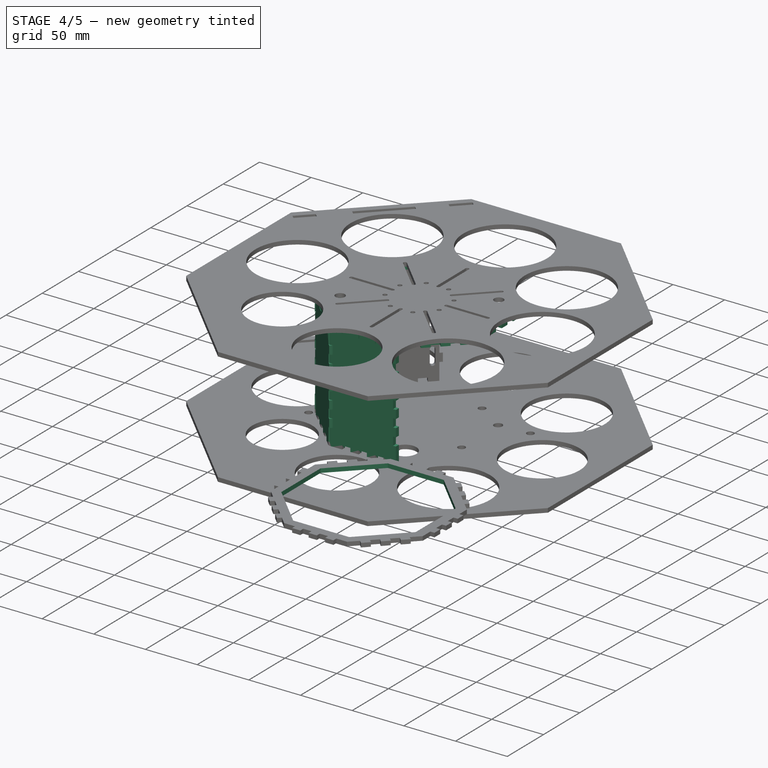
[diagram: stage 4 of 5 — iso view after this stage's code; geometry added in this stage tinted green]
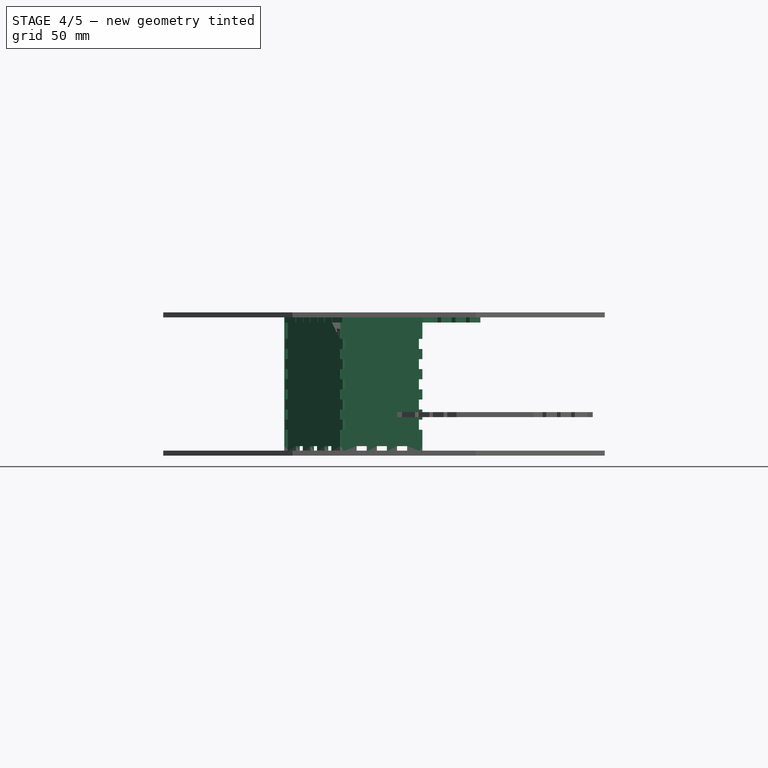
[diagram: stage 4 of 5 — front view after this stage's code; geometry added in this stage tinted green]
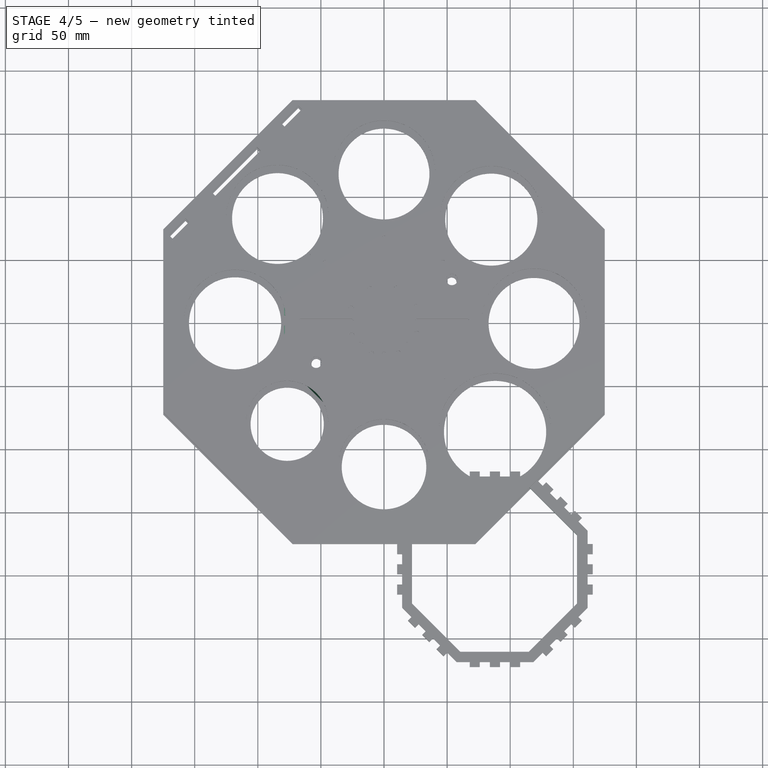
[diagram: stage 4 of 5 — top view after this stage's code; geometry added in this stage tinted green]
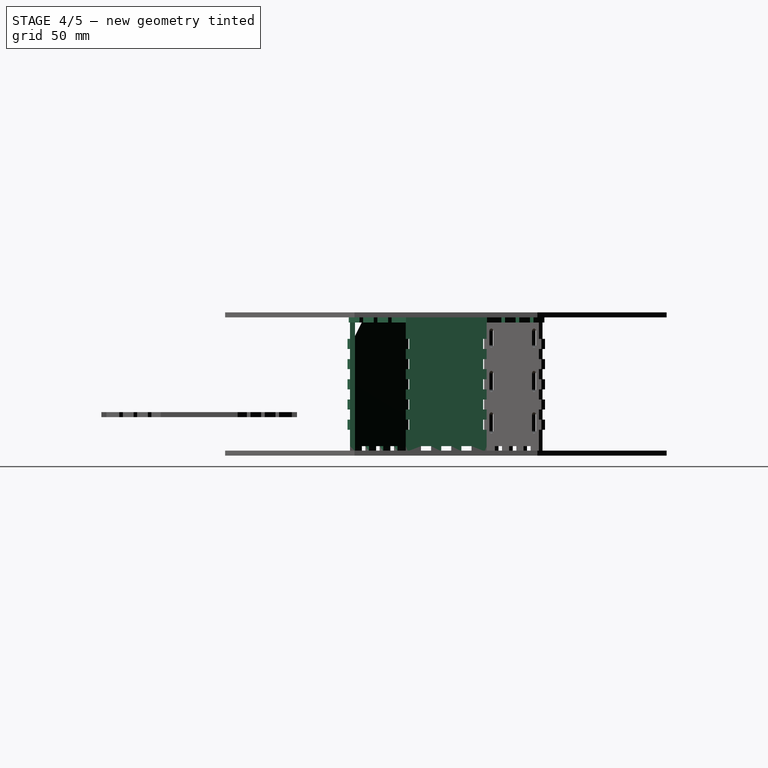
[diagram: stage 4 of 5 — right view after this stage's code; geometry added in this stage tinted green]
FEATURE [Part::Extrusion] Extrude005
  Base = -> Path008
  Dir = (0,0,-1)
  DirMode = 0
  FaceMakerClass = Part::FaceMakerBullseye
  LengthFwd = 4
  LengthRev = 0
  Placement = pos=(-309,-76,85) rot=(1,0,0;1.5708rad)
  Solid = true
  Symmetric = false
FEATURE [Part::Extrusion] Extrude006
  Base = -> Path009
  Dir = (0,0,-1)
  DirMode = 0
  FaceMakerClass = Part::FaceMakerBullseye
  LengthFwd = 4
  LengthRev = 0
  Placement = pos=(-319.591,208.831,85) rot=(0.862856,-0.357407,-0.357407;1.71777rad)
  Solid = true
  Symmetric = false
FEATURE [Part::Extrusion] Extrude007
  Base = -> Path010
  Dir = (0,0,-1)
  DirMode = 0
  FaceMakerClass = Part::FaceMakerBullseye
  LengthFwd = 4
  LengthRev = 0
  Placement = pos=(-79,440,85) rot=(0.57735,-0.57735,-0.57735;2.0944rad)
  Solid = true
  Symmetric = false
FEATURE [Part::Extrusion] Extrude009  label="Top"
  Base = -> Connect
  Dir = (0,0,-1)
  DirMode = 0
  FaceMakerClass = Part::FaceMakerBullseye
  LengthFwd = 4
  LengthRev = 0
  Placement = pos=(-246,196,75) rot=(0,0,1;0rad)
  Solid = true
  Symmetric = false
FEATURE [PartDesign::FeatureBase] BaseFeature
  BaseFeature = -> Extrude
FEATURE [Sketcher::SketchObject] Sketch008
  FullyConstrained = false
  MapMode = 5
  Support = -> [BaseFeature]
  sketch-geometry (9):
    g0: LineSegment StartX=152.898 StartY=-222.581 StartZ=0 EndX=152.898 EndY=-168.432 EndZ=0
    g1: LineSegment StartX=152.898 StartY=-168.432 StartZ=0 EndX=114.608 EndY=-130.142 EndZ=0
    g2: LineSegment StartX=114.608 StartY=-130.142 StartZ=0 EndX=60.4588 EndY=-130.142 EndZ=0
    g3: LineSegment StartX=60.4588 StartY=-130.142 StartZ=0 EndX=22.1693 EndY=-168.432 EndZ=0
    g4: LineSegment StartX=22.1693 StartY=-168.432 StartZ=0 EndX=22.1693 EndY=-222.581 EndZ=0
    g5: LineSegment StartX=22.1693 StartY=-222.581 StartZ=0 EndX=60.4588 EndY=-260.871 EndZ=0
    g6: LineSegment StartX=60.4588 StartY=-260.871 StartZ=0 EndX=114.608 EndY=-260.871 EndZ=0
    g7: LineSegment StartX=114.608 StartY=-260.871 StartZ=0 EndX=152.898 EndY=-222.581 EndZ=0
    g8: Circle CenterX=87.5335 CenterY=-195.506 CenterZ=0 NormalX=0 NormalY=0 NormalZ=1 AngleXU=0 Radius=70.7497
  constraints (18):
    c: Coincident(g0,g1)
    c: Coincident(g1,g2)
    c: Coincident(g2,g3)
    c: Coincident(g3,g4)
    c: Coincident(g4,g5)
    c: Coincident(g5,g6)
    c: Coincident(g6,g7)
    c: Coincident(g7,g0)
    c: Equal(g0, g1-g7) x7
    c: PointOnObject(g0,g8)
    c: PointOnObject(g1,g8)
    c: PointOnObject(g2,g8)
    c: PointOnObject(g3,g8)
    c: PointOnObject(g4,g8)
    c: PointOnObject(g5,g8)
    c: PointOnObject(g6,g8)
    c: PointOnObject(g7,g8)
    c: Parallel(g4,g-2)
FEATURE [PartDesign::Pocket] Pocket004
  BaseFeature = -> BaseFeature
  Direction = (0,0,-1)
  Length = 5
  Length2 = 5
  Profile = -> Sketch008
  ReferenceAxis = -> Sketch008 [N_Axis]
  Type = 0
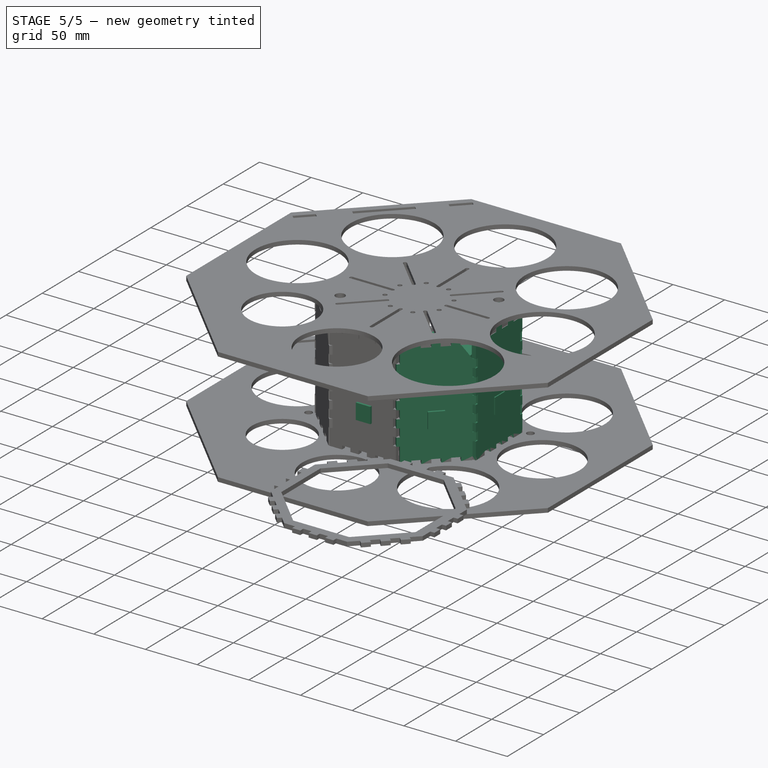
[diagram: stage 5 of 5 — iso view after this stage's code; geometry added in this stage tinted green]
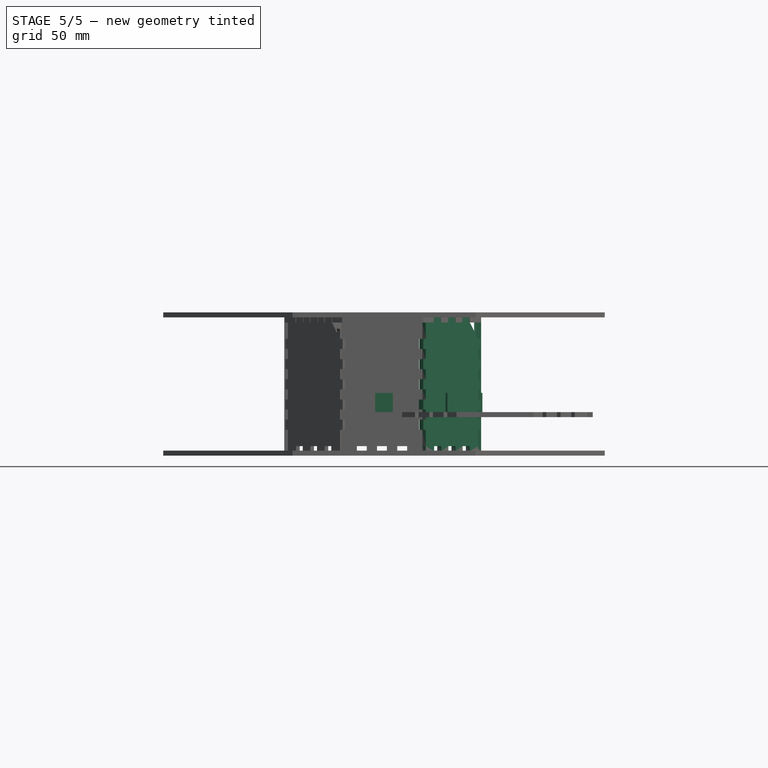
[diagram: stage 5 of 5 — front view after this stage's code; geometry added in this stage tinted green]
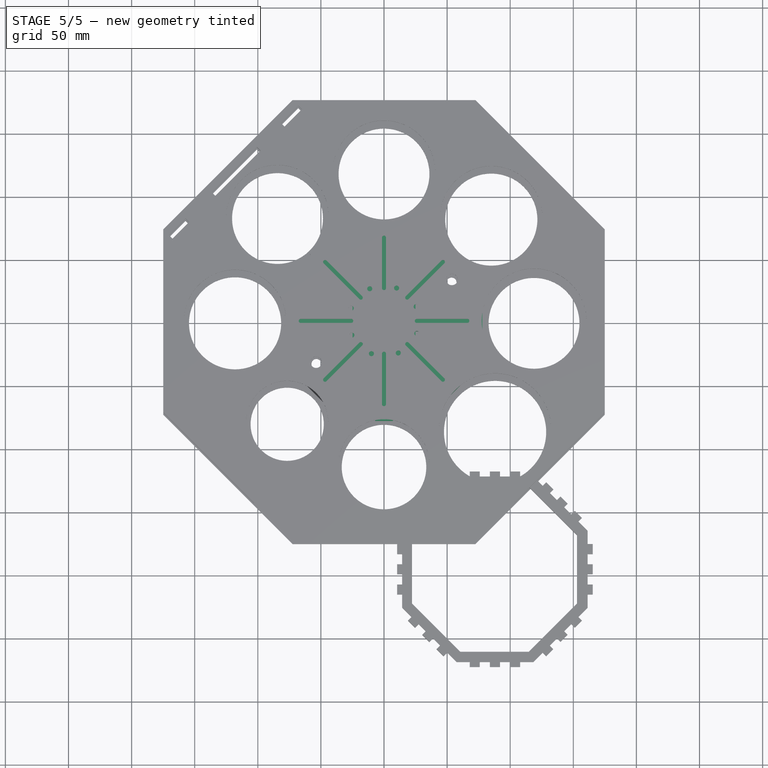
[diagram: stage 5 of 5 — top view after this stage's code; geometry added in this stage tinted green]
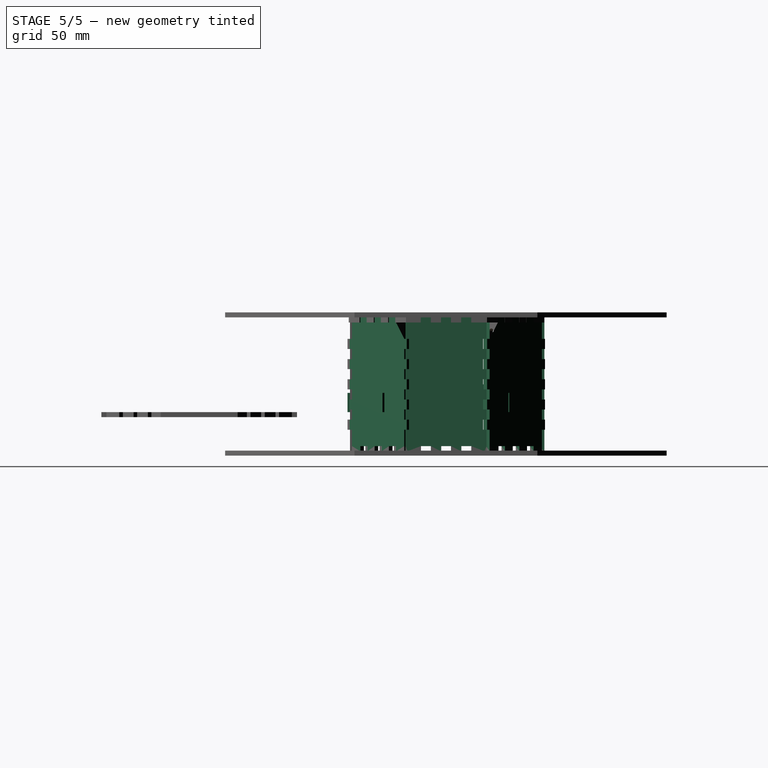
[diagram: stage 5 of 5 — right view after this stage's code; geometry added in this stage tinted green]
FEATURE [Sketcher::SketchObject] Sketch
  FullyConstrained = true
  MapMode = 5
  Support = -> [XY_Plane]
  sketch-geometry (5):
    g0: LineSegment StartX=-7 StartY=78 StartZ=0 EndX=-7 EndY=10 EndZ=0
    g1: LineSegment StartX=-7 StartY=10 StartZ=0 EndX=7 EndY=10 EndZ=0
    g2: LineSegment StartX=7 StartY=10 StartZ=0 EndX=7 EndY=78 EndZ=0
    g3: LineSegment StartX=7 StartY=78 StartZ=0 EndX=-7 EndY=78 EndZ=0
    g4: GeomPoint X=0 Y=44 Z=0
  constraints (13):
    c: Coincident(g0,g1)
    c: Coincident(g1,g2)
    c: Coincident(g2,g3)
    c: Coincident(g3,g0)
    c: Horizontal(g1)
    c: Horizontal(g3)
    c: Vertical(g0)
    c: Vertical(g2)
    c: Symmetric(g1,g0,g4)
    c: DistanceY(g2,g2) = 68
    c: DistanceX(g3,g3) = 14
    c: Vertical(g4,g-1)
    c: DistanceY(g-1,g0) = 10
FEATURE [PartDesign::Pad] Pad
  Direction = (0,0,1)
  Length = 15.2
  Length2 = 10
  Profile = -> Sketch
  ReferenceAxis = -> Sketch [N_Axis]
  Type = 0
FEATURE [PartDesign::PolarPattern] PolarPattern
  Angle = 360
  Axis = -> Sketch [N_Axis]
  BaseFeature = -> Pad
  Occurrences = 8
  Originals = -> [Pad]
FEATURE [PartDesign::Body] Body  label="Solenoids"
  Group = -> [Sketch,Pad,PolarPattern]
  Origin = -> Origin
  Placement = pos=(0,0,79.5) rot=(0,0,1;0rad)
  Tip = -> PolarPattern
FEATURE [Sketcher::SketchObject] Sketch001
  FullyConstrained = true
  MapMode = 5
  Support = -> [XY_Plane001]
  sketch-geometry (5):
    g0: LineSegment StartX=-25 StartY=70.5 StartZ=0 EndX=-25 EndY=-70.5 EndZ=0
    g1: LineSegment StartX=-25 StartY=-70.5 StartZ=0 EndX=25 EndY=-70.5 EndZ=0
    g2: LineSegment StartX=25 StartY=-70.5 StartZ=0 EndX=25 EndY=70.5 EndZ=0
    g3: LineSegment StartX=25 StartY=70.5 StartZ=0 EndX=-25 EndY=70.5 EndZ=0
    g4: GeomPoint X=0 Y=-1e-16 Z=0
  constraints (12):
    c: Coincident(g0,g1)
    c: Coincident(g1,g2)
    c: Coincident(g2,g3)
    c: Coincident(g3,g0)
    c: Horizontal(g1)
    c: Horizontal(g3)
    c: Vertical(g0)
    c: Vertical(g2)
    c: Symmetric(g1,g0,g4)
    c: Coincident(g4,g-1)
    c: DistanceX(g3,g3) = 50
    c: DistanceY(g0,g0) = 141
FEATURE [PartDesign::Pad] Pad001
  Direction = (0,0,1)
  Length = 22
  Length2 = 10
  Profile = -> Sketch001
  ReferenceAxis = -> Sketch001 [N_Axis]
  Type = 0
FEATURE [Part::Extrusion] Extrude001
  Base = -> Path004
  Dir = (0,0,-1)
  DirMode = 0
  FaceMakerClass = Part::FaceMakerBullseye
  LengthFwd = 4
  LengthRev = 0
  Placement = pos=(-44,74,85) rot=(1,0,0;1.5708rad)
  Solid = true
  Symmetric = false
FEATURE [Part::Extrusion] Extrude002
  Base = -> Path005
  Dir = (0,0,-1)
  DirMode = 0
  FaceMakerClass = Part::FaceMakerBullseye
  LengthFwd = 4
  LengthRev = 0
  Placement = pos=(-26.163,129.401,85) rot=(0.862856,-0.357407,-0.357407;1.71777rad)
  Solid = true
  Symmetric = false
FEATURE [Part::Extrusion] Extrude003
  Base = -> Path006
  Dir = (0,0,-1)
  DirMode = 0
  FaceMakerClass = Part::FaceMakerBullseye
  LengthFwd = 4
  LengthRev = 0
  Placement = pos=(73,175,85) rot=(0.57735,-0.57735,-0.57735;2.0944rad)
  Solid = true
  Symmetric = false
FEATURE [Part::Extrusion] Extrude004
  Base = -> Path007
  Dir = (0,0,-1)
  DirMode = 0
  FaceMakerClass = Part::FaceMakerBullseye
  LengthFwd = 4
  LengthRev = 0
  Placement = pos=(-116.673,-224.153,85) rot=(0.862856,0.357407,0.357407;1.71777rad)
  Solid = true
  Symmetric = false
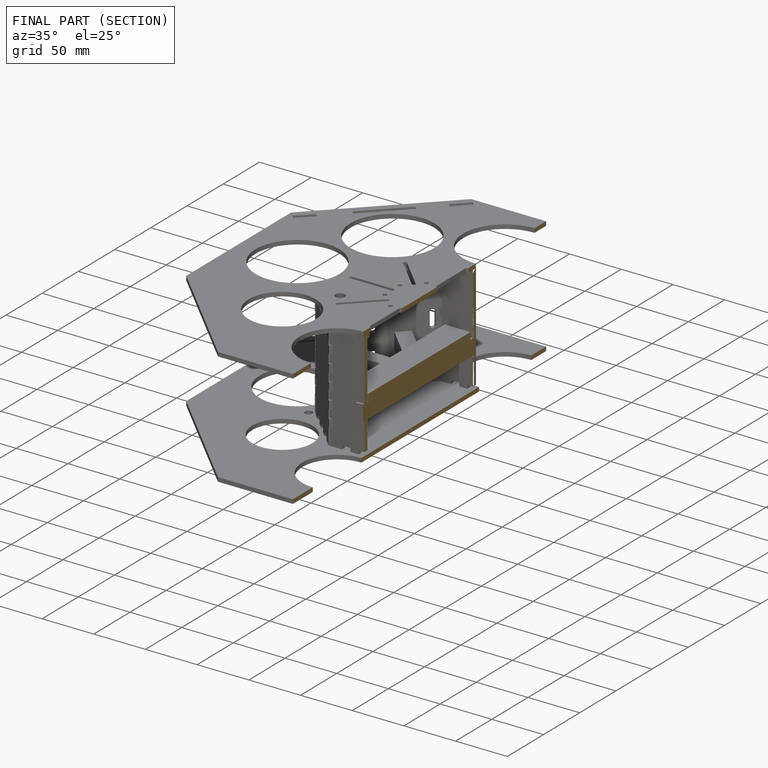
[diagram: finished part — half-section view (interior)]
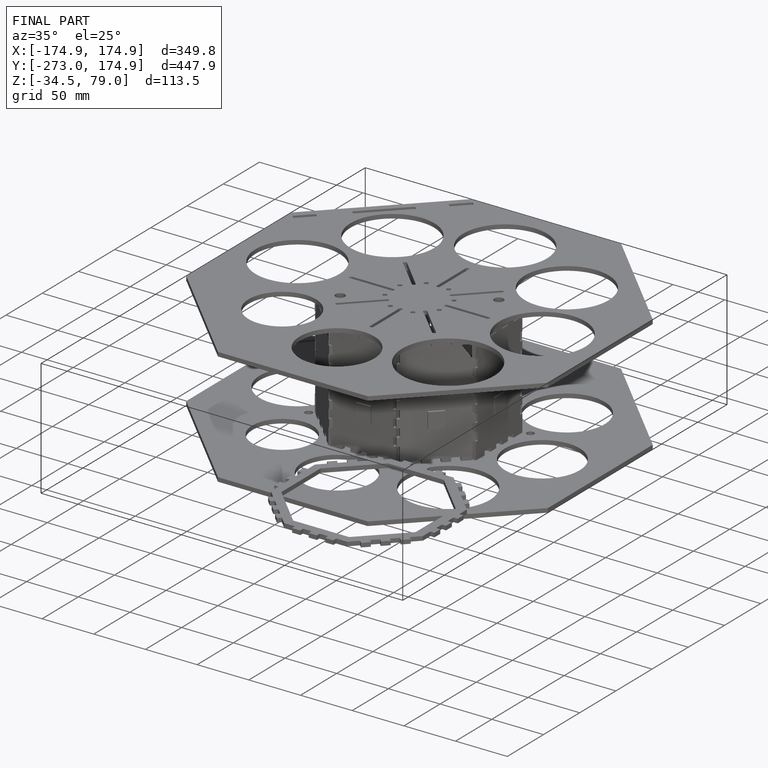
[diagram: finished part — iso view with bounding-box wireframe]
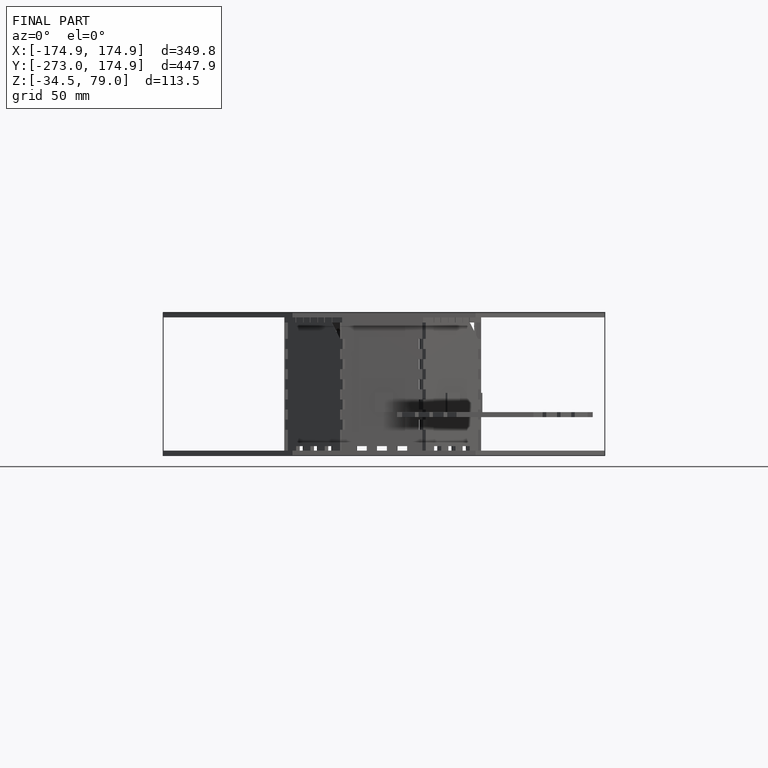
[diagram: finished part — front view with bounding-box wireframe]
